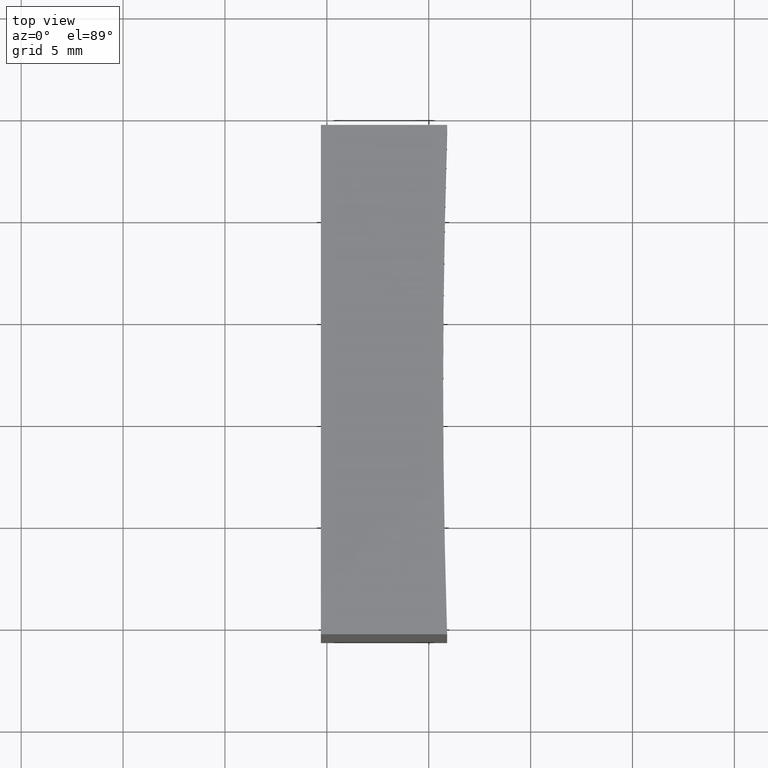
[diagram: clean part render]
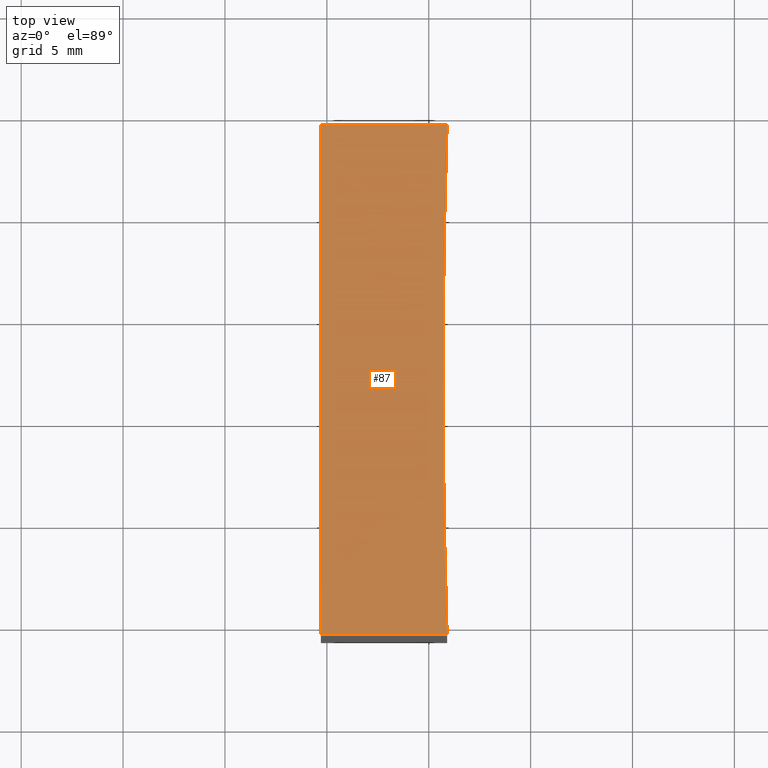
[diagram: same view with one face highlighted and labeled with its STEP entity id]
A machine part, top view. The second image highlights one B-rep face of the part: STEP entity #87.
In plain terms, the highlighted planar face has unit normal (0, 0, 1).
Its self-contained STEP definition (entity closure, byte-faithful):
#9 = CARTESIAN_POINT ( 'NONE',  ( 690.7071356183511200, 66.85792926776717600, 25.00000000000000000 ) ) ;
#10 = LINE ( 'NONE', #202, #200 ) ;
#19 = ORIENTED_EDGE ( 'NONE', *, *, #205, .T. ) ;
#26 = FACE_OUTER_BOUND ( 'NONE', #65, .T. ) ;
#27 = CARTESIAN_POINT ( 'NONE',  ( 284.7071356312820900, 79.35792926776707600, 25.00000000000000000 ) ) ;
#38 = ORIENTED_EDGE ( 'NONE', *, *, #194, .T. ) ;
#43 = EDGE_CURVE ( 'NONE', #93, #134, #132, .T. ) ;
#44 = VECTOR ( 'NONE', #105, 1000.000000000000000 ) ;
#46 = CARTESIAN_POINT ( 'NONE',  ( 290.9024958253641000, 54.35792926776742500, 25.00000000000000000 ) ) ;
#48 = CARTESIAN_POINT ( 'NONE',  ( 284.7071356312820900, 54.35792926776707600, 25.00000000000000000 ) ) ;
#57 = VERTEX_POINT ( 'NONE', #27 ) ;
#60 = EDGE_CURVE ( 'NONE', #134, #130, #131, .T. ) ;
#65 = EDGE_LOOP ( 'NONE', ( #100, #19, #85, #122, #38 ) ) ;
#67 = AXIS2_PLACEMENT_3D ( 'NONE', #193, #123, #119 ) ;
#75 = LINE ( 'NONE', #48, #44 ) ;
#82 = DIRECTION ( 'NONE',  ( 1.000000000000000000, 0.0000000000000000000, 0.0000000000000000000 ) ) ;
#84 = CARTESIAN_POINT ( 'NONE',  ( 290.7071356183510000, 66.85792926776717600, 25.00000000000000000 ) ) ;
#85 = ORIENTED_EDGE ( 'NONE', *, *, #43, .T. ) ;
#86 = PLANE ( 'NONE',  #67 ) ;
#87 = ADVANCED_FACE ( 'NONE', ( #26 ), #86, .T. ) ;
#89 = VERTEX_POINT ( 'NONE', #229 ) ;
#91 = CARTESIAN_POINT ( 'NONE',  ( 284.7071356312820900, 79.35792926776707600, 25.00000000000000000 ) ) ;
#93 = VERTEX_POINT ( 'NONE', #46 ) ;
#97 = EDGE_CURVE ( 'NONE', #57, #89, #75, .T. ) ;
#100 = ORIENTED_EDGE ( 'NONE', *, *, #97, .T. ) ;
#105 = DIRECTION ( 'NONE',  ( -0.0000000000000000000, -1.000000000000000000, -0.0000000000000000000 ) ) ;
#115 = CARTESIAN_POINT ( 'NONE',  ( 290.9024958253641000, 79.35792926776707600, 25.00000000000000000 ) ) ;
#117 = AXIS2_PLACEMENT_3D ( 'NONE', #9, #196, #141 ) ;
#118 = DIRECTION ( 'NONE',  ( -0.0000000000000000000, -0.0000000000000000000, -1.000000000000000000 ) ) ;
#119 = DIRECTION ( 'NONE',  ( 1.000000000000000000, 0.0000000000000000000, -0.0000000000000000000 ) ) ;
#122 = ORIENTED_EDGE ( 'NONE', *, *, #60, .T. ) ;
#123 = DIRECTION ( 'NONE',  ( 0.0000000000000000000, 0.0000000000000000000, 1.000000000000000000 ) ) ;
#130 = VERTEX_POINT ( 'NONE', #115 ) ;
#131 = CIRCLE ( 'NONE', #117, 400.0000000000000000 ) ;
#132 = CIRCLE ( 'NONE', #164, 400.0000000000000000 ) ;
#134 = VERTEX_POINT ( 'NONE', #84 ) ;
#141 = DIRECTION ( 'NONE',  ( 1.000000000000000000, 0.0000000000000000000, 0.0000000000000000000 ) ) ;
#164 = AXIS2_PLACEMENT_3D ( 'NONE', #191, #118, #82 ) ;
#183 = DIRECTION ( 'NONE',  ( -1.000000000000000000, -0.0000000000000000000, -0.0000000000000000000 ) ) ;
#191 = CARTESIAN_POINT ( 'NONE',  ( 690.7071356183511200, 66.85792926776717600, 25.00000000000000000 ) ) ;
#192 = LINE ( 'NONE', #91, #220 ) ;
#193 = CARTESIAN_POINT ( 'NONE',  ( 690.7071356183511200, 66.85792926776717600, 25.00000000000000000 ) ) ;
#194 = EDGE_CURVE ( 'NONE', #130, #57, #192, .T. ) ;
#196 = DIRECTION ( 'NONE',  ( -0.0000000000000000000, -0.0000000000000000000, -1.000000000000000000 ) ) ;
#197 = DIRECTION ( 'NONE',  ( 1.000000000000000000, 3.360043816597844900E-014, -0.0000000000000000000 ) ) ;
#200 = VECTOR ( 'NONE', #197, 1000.000000000000000 ) ;
#202 = CARTESIAN_POINT ( 'NONE',  ( 290.9024958253641000, 54.35792926776729000, 25.00000000000000000 ) ) ;
#205 = EDGE_CURVE ( 'NONE', #89, #93, #10, .T. ) ;
#220 = VECTOR ( 'NONE', #183, 1000.000000000000000 ) ;
#229 = CARTESIAN_POINT ( 'NONE',  ( 284.7071356312820900, 54.35792926776707600, 25.00000000000000000 ) ) ;